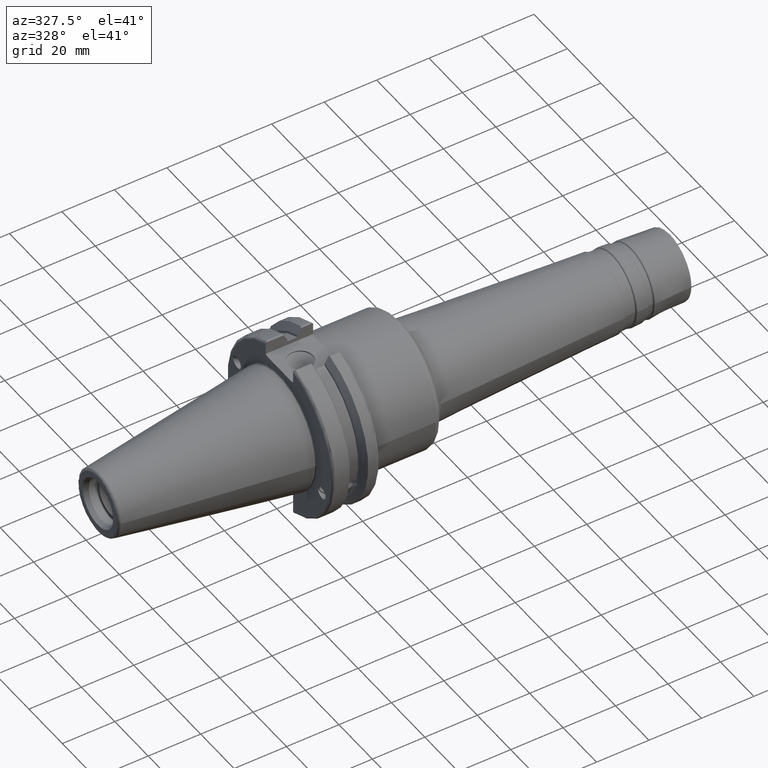
[diagram: clean part render]
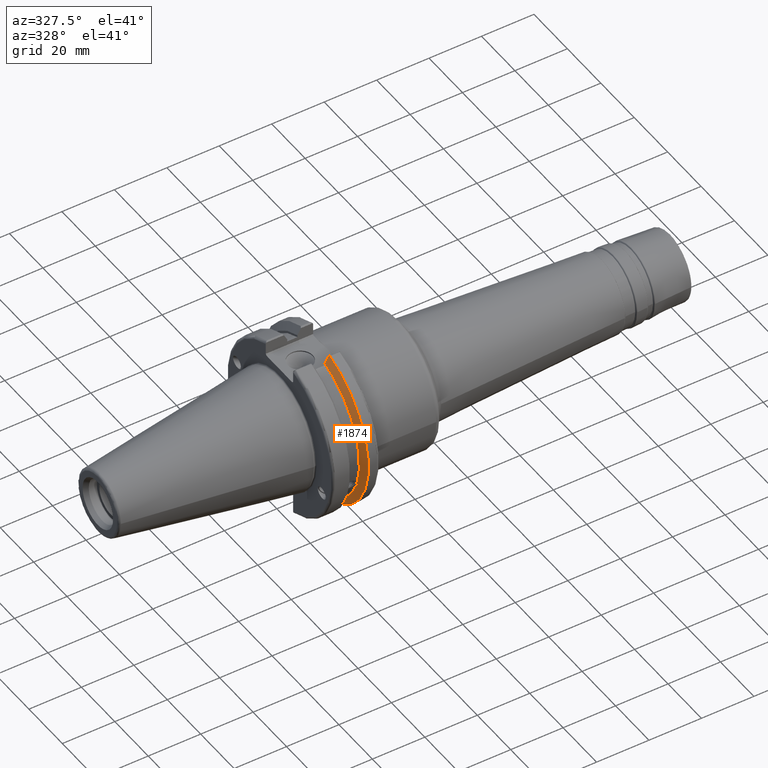
[diagram: same view with one face highlighted and labeled with its STEP entity id]
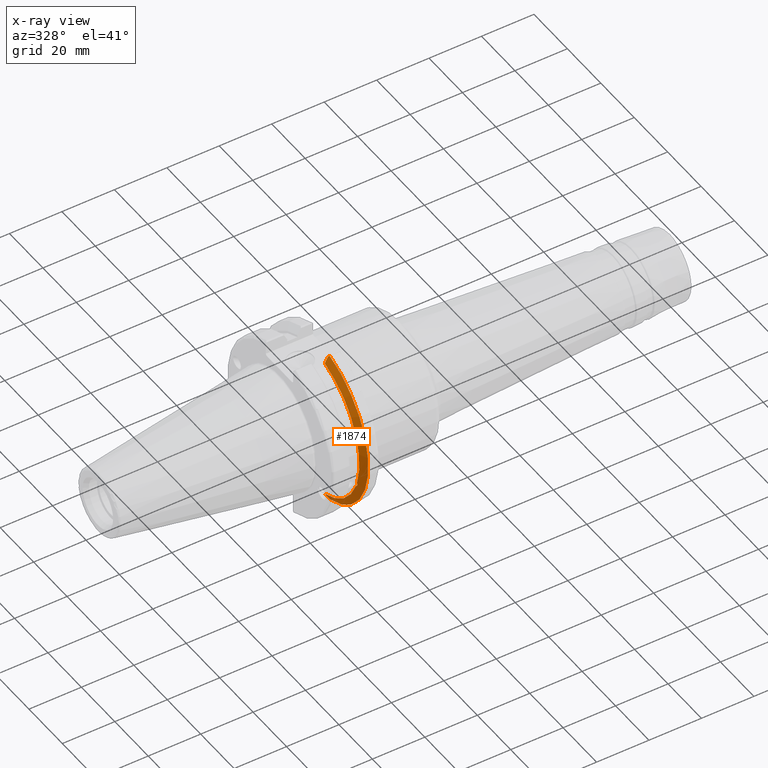
[diagram: x-ray of the same camera — body ghosted, the highlighted face saturated]
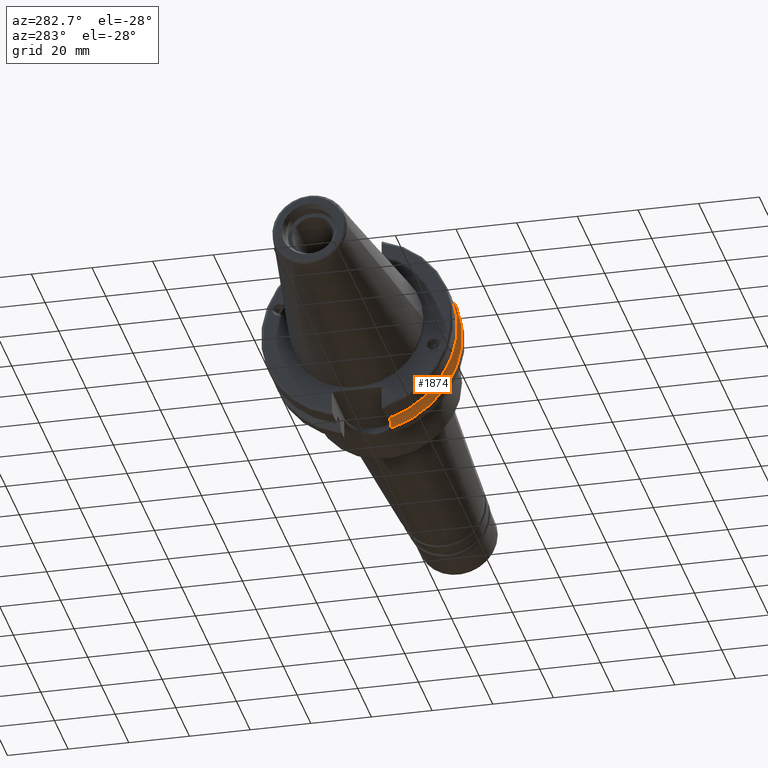
[diagram: same view with one face highlighted and labeled with its STEP entity id]
A machine part, auxiliary view. The second image highlights one B-rep face of the part: STEP entity #1874.
The next image is the same camera in x-ray: the body ghosted, the highlighted face saturated — about 2% of this face is hidden behind the body in this view.
A second angle (auxiliary view) of the same face is appended — the face is thin or edge-on in the first view.
In plain terms, the highlighted conical surface has half-angle 60 deg.
Its self-contained STEP definition (entity closure, byte-faithful):
#15=(
BOUNDED_CURVE()
B_SPLINE_CURVE(2,(#3280,#3281,#3282),.UNSPECIFIED.,.F.,.F.)
B_SPLINE_CURVE_WITH_KNOTS((3,3),(0.,0.276549142795441),.UNSPECIFIED.)
CURVE()
GEOMETRIC_REPRESENTATION_ITEM()
RATIONAL_B_SPLINE_CURVE((1.,1.00095203903848,1.0003161444499))
REPRESENTATION_ITEM('')
);
#16=(
BOUNDED_CURVE()
B_SPLINE_CURVE(2,(#3284,#3285,#3286),.UNSPECIFIED.,.F.,.F.)
B_SPLINE_CURVE_WITH_KNOTS((3,3),(0.,0.0639048713675827),.UNSPECIFIED.)
CURVE()
GEOMETRIC_REPRESENTATION_ITEM()
RATIONAL_B_SPLINE_CURVE((1.,1.0002844421829,1.00047644010585))
REPRESENTATION_ITEM('')
);
#17=(
BOUNDED_CURVE()
B_SPLINE_CURVE(2,(#3290,#3291,#3292),.UNSPECIFIED.,.F.,.F.)
B_SPLINE_CURVE_WITH_KNOTS((3,3),(0.329353533631235,0.393258405001021),
 .UNSPECIFIED.)
CURVE()
GEOMETRIC_REPRESENTATION_ITEM()
RATIONAL_B_SPLINE_CURVE((1.00047644010603,1.00028444218301,1.))
REPRESENTATION_ITEM('')
);
#18=(
BOUNDED_CURVE()
B_SPLINE_CURVE(2,(#3294,#3295,#3296),.UNSPECIFIED.,.F.,.F.)
B_SPLINE_CURVE_WITH_KNOTS((3,3),(0.0550586467398929,0.331607789535851),
 .UNSPECIFIED.)
CURVE()
GEOMETRIC_REPRESENTATION_ITEM()
RATIONAL_B_SPLINE_CURVE((1.00031614444973,1.00095203903796,1.))
REPRESENTATION_ITEM('')
);
#116=CONICAL_SURFACE('',#2091,30.3546886482472,1.0471975511966);
#150=B_SPLINE_CURVE_WITH_KNOTS('',3,(#3187,#3188,#3189,#3190,#3191,#3192,
#3193,#3194),.UNSPECIFIED.,.F.,.F.,(4,2,2,4),(0.451995700189025,0.464547828547662,
0.504528771685167,0.544509714822672),.UNSPECIFIED.);
#154=B_SPLINE_CURVE_WITH_KNOTS('',3,(#3249,#3250,#3251,#3252,#3253,#3254,
#3255,#3256),.UNSPECIFIED.,.F.,.F.,(4,2,2,4),(0.544509714822672,0.584490657960178,
0.624471601097683,0.637023729456322),.UNSPECIFIED.);
#222=FACE_OUTER_BOUND('',#336,.T.);
#336=EDGE_LOOP('',(#1462,#1463,#1464,#1465,#1466,#1467,#1468,#1469,#1470));
#680=CIRCLE('',#2092,28.9593772964944);
#681=CIRCLE('',#2093,31.75);
#682=CIRCLE('',#2094,28.9593772964944);
#811=VERTEX_POINT('',#3184);
#812=VERTEX_POINT('',#3186);
#819=VERTEX_POINT('',#3247);
#825=VERTEX_POINT('',#3277);
#826=VERTEX_POINT('',#3279);
#827=VERTEX_POINT('',#3283);
#828=VERTEX_POINT('',#3287);
#829=VERTEX_POINT('',#3289);
#830=VERTEX_POINT('',#3293);
#1042=EDGE_CURVE('',#812,#811,#150,.T.);
#1050=EDGE_CURVE('',#811,#819,#154,.T.);
#1059=EDGE_CURVE('',#819,#825,#680,.T.);
#1060=EDGE_CURVE('',#825,#826,#15,.T.);
#1061=EDGE_CURVE('',#827,#826,#16,.T.);
#1062=EDGE_CURVE('',#828,#827,#681,.T.);
#1063=EDGE_CURVE('',#829,#828,#17,.T.);
#1064=EDGE_CURVE('',#829,#830,#18,.T.);
#1065=EDGE_CURVE('',#830,#812,#682,.T.);
#1462=ORIENTED_EDGE('',*,*,#1042,.T.);
#1463=ORIENTED_EDGE('',*,*,#1050,.T.);
#1464=ORIENTED_EDGE('',*,*,#1059,.T.);
#1465=ORIENTED_EDGE('',*,*,#1060,.T.);
#1466=ORIENTED_EDGE('',*,*,#1061,.F.);
#1467=ORIENTED_EDGE('',*,*,#1062,.F.);
#1468=ORIENTED_EDGE('',*,*,#1063,.F.);
#1469=ORIENTED_EDGE('',*,*,#1064,.T.);
#1470=ORIENTED_EDGE('',*,*,#1065,.T.);
#1874=ADVANCED_FACE('',(#222),#116,.T.);
#2091=AXIS2_PLACEMENT_3D('',#3276,#2513,#2514);
#2092=AXIS2_PLACEMENT_3D('',#3278,#2515,#2516);
#2093=AXIS2_PLACEMENT_3D('',#3288,#2517,#2518);
#2094=AXIS2_PLACEMENT_3D('',#3297,#2519,#2520);
#2513=DIRECTION('center_axis',(1.,0.,0.));
#2514=DIRECTION('ref_axis',(0.,-1.,-1.22464679914735E-16));
#2515=DIRECTION('center_axis',(1.,0.,0.));
#2516=DIRECTION('ref_axis',(0.,0.,-1.));
#2517=DIRECTION('center_axis',(1.,0.,0.));
#2518=DIRECTION('ref_axis',(0.,0.,-1.));
#2519=DIRECTION('center_axis',(1.,0.,0.));
#2520=DIRECTION('ref_axis',(0.,0.,-1.));
#3184=CARTESIAN_POINT('',(13.2341,-27.51401829017,-10.0142836826777));
#3186=CARTESIAN_POINT('',(13.0491,-27.4956274489925,-9.09043478536245));
#3187=CARTESIAN_POINT('Ctrl Pts',(13.0491,-27.4956274489925,-9.09043478536245));
#3188=CARTESIAN_POINT('Ctrl Pts',(13.0632204071996,-27.5087667900418,-9.12860597076217));
#3189=CARTESIAN_POINT('Ctrl Pts',(13.0766929817857,-27.5206055003513,-9.16696618806877));
#3190=CARTESIAN_POINT('Ctrl Pts',(13.130081441159,-27.5642934663232,-9.32791534028656));
#3191=CARTESIAN_POINT('Ctrl Pts',(13.1682197084175,-27.5867382255984,-9.46717946402648));
#3192=CARTESIAN_POINT('Ctrl Pts',(13.2204106446058,-27.5847569104122,-9.74771639360671));
#3193=CARTESIAN_POINT('Ctrl Pts',(13.2341,-27.559599249844,-9.8890510252165));
#3194=CARTESIAN_POINT('Ctrl Pts',(13.2341,-27.51401829017,-10.0142836826777));
#3247=CARTESIAN_POINT('',(13.0491,-26.9060914640648,-10.7101715919071));
#3249=CARTESIAN_POINT('Ctrl Pts',(13.2341,-27.51401829017,-10.0142836826777));
#3250=CARTESIAN_POINT('Ctrl Pts',(13.2341,-27.4684373304961,-10.139516340139));
#3251=CARTESIAN_POINT('Ctrl Pts',(13.2204106446058,-27.3968610665578,-10.2639559818059));
#3252=CARTESIAN_POINT('Ctrl Pts',(13.1682197084175,-27.2180531796526,-10.4801333026531));
#3253=CARTESIAN_POINT('Ctrl Pts',(13.130081441159,-27.1113422433189,-10.5723885976054));
#3254=CARTESIAN_POINT('Ctrl Pts',(13.0766929817857,-26.9744191989197,-10.6676007180673));
#3255=CARTESIAN_POINT('Ctrl Pts',(13.0632204071996,-26.9406927482839,-10.6893765730703));
#3256=CARTESIAN_POINT('Ctrl Pts',(13.0491,-26.9060914640648,-10.7101715919071));
#3276=CARTESIAN_POINT('Origin',(13.8546833845378,0.,0.));
#3277=CARTESIAN_POINT('',(13.0491,-8.19,-27.7771386827498));
#3278=CARTESIAN_POINT('Origin',(13.0491,0.,0.));
#3279=CARTESIAN_POINT('',(14.3815146964874,-8.19,-30.1755016258903));
#3280=CARTESIAN_POINT('Ctrl Pts',(13.0491,-8.19,-27.7771386827498));
#3281=CARTESIAN_POINT('Ctrl Pts',(13.6877364384886,-8.19,-28.930368953993));
#3282=CARTESIAN_POINT('Ctrl Pts',(14.3815146964874,-8.19,-30.1755016258903));
#3283=CARTESIAN_POINT('',(14.6602667690756,-8.67204822802686,-30.5427254764662));
#3284=CARTESIAN_POINT('Ctrl Pts',(14.6602667690756,-8.67204822802687,-30.5427254764662));
#3285=CARTESIAN_POINT('Ctrl Pts',(14.5192085187837,-8.42917748262644,-30.357706789263));
#3286=CARTESIAN_POINT('Ctrl Pts',(14.3815146964874,-8.19,-30.1755016258903));
#3287=CARTESIAN_POINT('',(14.6602667690756,-8.67204822802685,30.5427254764662));
#3288=CARTESIAN_POINT('Origin',(14.6602667690756,0.,0.));
#3289=CARTESIAN_POINT('',(14.3815146964874,-8.18999999999999,30.1755016258903));
#3290=CARTESIAN_POINT('Ctrl Pts',(14.3815146964874,-8.19,30.1755016258903));
#3291=CARTESIAN_POINT('Ctrl Pts',(14.5192085187884,-8.42917748263459,30.3577067892692));
#3292=CARTESIAN_POINT('Ctrl Pts',(14.6602667690756,-8.67204822802686,30.5427254764662));
#3293=CARTESIAN_POINT('',(13.0491,-8.19,27.7771386827498));
#3294=CARTESIAN_POINT('Ctrl Pts',(14.3815146964874,-8.18999999999999,30.1755016258903));
#3295=CARTESIAN_POINT('Ctrl Pts',(13.6877364384816,-8.18999999999999,28.9303689539805));
#3296=CARTESIAN_POINT('Ctrl Pts',(13.0491,-8.19,27.7771386827498));
#3297=CARTESIAN_POINT('Origin',(13.0491,0.,0.));